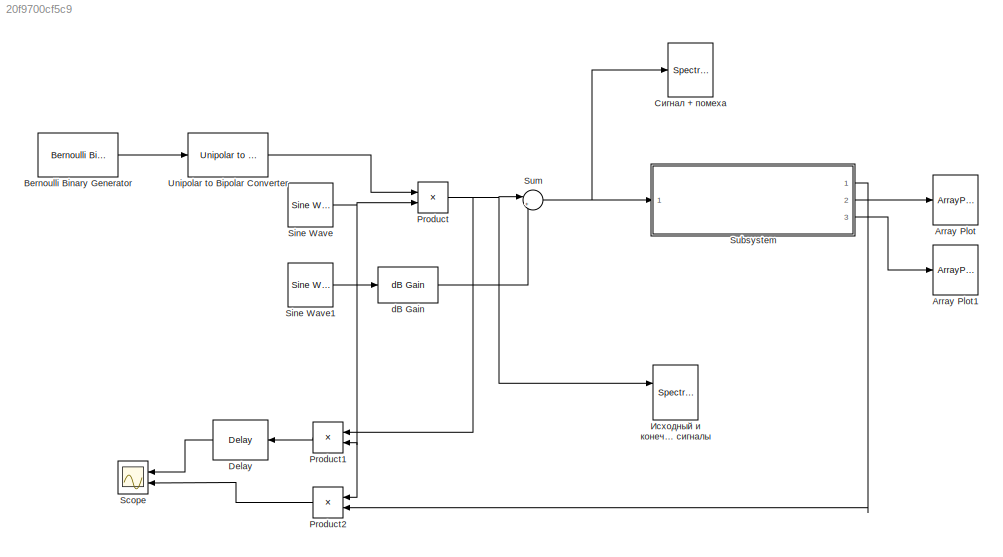
MODEL slx_20f9700cf5c9
KIND model
CONFIG AbsTol = auto
CONFIG EnableMultiTasking = off
CONFIG FixedStep = auto
CONFIG MaxStep = auto
CONFIG MinStep = auto
CONFIG RelTol = 1e-3
CONFIG SampleTimeConstraint = Unconstrained
CONFIG SolverName = VariableStepAuto
CONFIG StartTime = 0.0
CONFIG StopTime = inf
BLOCK [ArrayPlot] Array Plot
  Ports = [1]
  ScopeSpecificationString = dsp.scopes.ArrayPlotBlockSpecification('CurrentConfiguration', extmgr.ConfigurationSet(extmgr.Configuration('Core','General UI',true),extmgr.Configuration('Core','Source UI',true),extmgr.Configuration('Sources','WiredSimulink',true),extmgr.Configuration('Visuals','Array Plot',true,'DisplayPropertyDefaults',struct('MinYLimReal','-26.775','MaxYLimReal','241.774','YLabelReal','Amplitude','MinYLimMag'...<+1396ch>
BLOCK [ArrayPlot] Array Plot1
  Ports = [1]
  ScopeSpecificationString = dsp.scopes.ArrayPlotBlockSpecification('CurrentConfiguration', extmgr.ConfigurationSet(extmgr.Configuration('Core','General UI',true),extmgr.Configuration('Core','Source UI',true),extmgr.Configuration('Sources','WiredSimulink',true),extmgr.Configuration('Visuals','Array Plot',true,'DisplayPropertyDefaults',struct('MinYLimReal','-13.0743','MaxYLimReal','117.668','YLabelReal','Amplitude','MinYLimMag...<+1369ch>
BLOCK [Reference] Bernoulli Binary Generator  REF=commrandsrc3/Bernoulli Binary
Generator
  Ports = [0, 1]
  SourceBlock = commrandsrc3/Bernoulli Binary\nGenerator
  SourceProductBaseCode = CM
  SourceType = Bernoulli Binary Generator
BLOCK [Delay] Delay
  DelayLength = 1024
  InitialCondition = 0
  InputPortMap = u0
  Ports = [1, 1]
BLOCK [Product] Product
  Ports = [2, 1]
BLOCK [Product] Product1
  Ports = [2, 1]
BLOCK [Product] Product2
  Ports = [2, 1]
BLOCK [Scope] Scope
  Floating = off
  NumInputPorts = 2
  Ports = [2]
  ScopeSpecificationString = Simulink.scopes.TimeScopeBlockCfg('CurrentConfiguration', extmgr.ConfigurationSet(extmgr.Configuration('Core','General UI',true),extmgr.Configuration('Core','Source UI',true),extmgr.Configuration('Sources','WiredSimulink',true),extmgr.Configuration('Visuals','Time Domain',true,'SerializedDisplays',{struct('MinYLimReal','-1.25','MaxYLimReal','1.25','YLabelReal','','MinYLimMag','0.00000','MaxYLimMag...<+2050ch>
BLOCK [Reference] Sine Wave  REF=dspsrcs4/Sine Wave
  Ports = [0, 1]
  SourceBlock = dspsrcs4/Sine Wave
  SourceProductBaseCode = DS
  SourceType = Sine Wave
BLOCK [Reference] Sine Wave1  REF=dspsrcs4/Sine Wave
  Ports = [0, 1]
  SourceBlock = dspsrcs4/Sine Wave
  SourceProductBaseCode = DS
  SourceType = Sine Wave
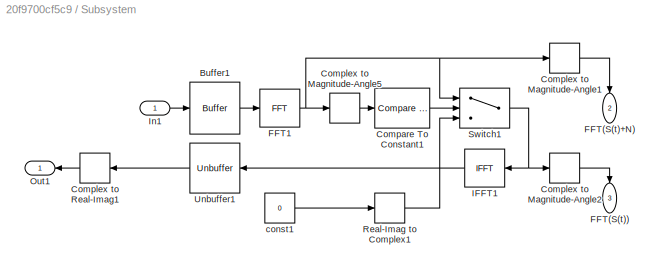
BLOCK [SubSystem] Subsystem
  Ports = [1, 3]
  RequestExecContextInheritance = off
BLOCK [Buffer] Subsystem/Buffer1
  N = FFT_Length
  OutputFrames = off
BLOCK [Reference] Subsystem/Compare To Constant1  REF=simulink/Logic and Bit
Operations/Compare
To Constant
  Ports = [1, 1]
  SourceBlock = simulink/Logic and Bit\nOperations/Compare\nTo Constant
  SourceProductBaseCode = SL
  SourceType = Compare To Constant
BLOCK [ComplexToMagnitudeAngle] Subsystem/Complex to Magnitude-Angle1
  Output = Magnitude
  Ports = [1, 1]
BLOCK [ComplexToMagnitudeAngle] Subsystem/Complex to Magnitude-Angle2
  Output = Magnitude
  Ports = [1, 1]
BLOCK [ComplexToMagnitudeAngle] Subsystem/Complex to Magnitude-Angle5
  Output = Magnitude
  Ports = [1, 1]
BLOCK [ComplexToRealImag] Subsystem/Complex to Real-Imag1
  Output = Real
  Ports = [1, 1]
BLOCK [Outport] Subsystem/FFT(S(t))
  NameLocation = left
  Port = 3
BLOCK [Outport] Subsystem/FFT(S(t)+N)
  NameLocation = left
  Port = 2
BLOCK [Reference] Subsystem/FFT1  REF=dspxfrm3/FFT
  Ports = [1, 1]
  SourceBlock = dspxfrm3/FFT
  SourceProductBaseCode = DS
  SourceType = FFT
BLOCK [Reference] Subsystem/IFFT1  REF=dspxfrm3/IFFT
  Ports = [1, 1]
  SourceBlock = dspxfrm3/IFFT
  SourceProductBaseCode = DS
  SourceType = IFFT
BLOCK [Inport] Subsystem/In1
BLOCK [Outport] Subsystem/Out1
BLOCK [RealImagToComplex] Subsystem/Real-Imag to Complex1
  Input = Real
  NameLocation = top
  Ports = [1, 1]
BLOCK [Switch] Subsystem/Switch1
  Criteria = u2 > Threshold
  InputSameDT = off
  SaturateOnIntegerOverflow = off
BLOCK [Unbuffer] Subsystem/Unbuffer1
  Ports = [1, 1]
BLOCK [Constant] Subsystem/const1
  OutDataTypeStr = Inherit: Inherit via back propagation
  Value = 0
BLOCK [Sum] Sum
  Inputs = |++
  Ports = [2, 1]
BLOCK [Reference] Unipolar to Bipolar Converter  REF=commutil2/Unipolar to
Bipolar
Converter
  Ports = [1, 1]
  SourceBlock = commutil2/Unipolar to\nBipolar\nConverter
  SourceProductBaseCode = CM
  SourceType = Unipolar to Bipolar Converter
BLOCK [Reference] dB Gain  REF=dspmathops/dB Gain
  Ports = [1, 1]
  SourceBlock = dspmathops/dB Gain
  SourceProductBaseCode = DS
  SourceType = dB Gain
BLOCK [SpectrumAnalyzer] Исходный и конечный сигналы
  NumInputPorts = 2
  Ports = [2]
  ScopeSpecificationString = spbscopes.SpectrumAnalyzerBlockCfg('CurrentConfiguration', extmgr.ConfigurationSet(extmgr.Configuration('Core','General UI',true),extmgr.Configuration('Core','Source UI',true),extmgr.Configuration('Sources','WiredSimulink',true),extmgr.Configuration('Visuals','Spectrum',true,'AxesProperties',struct('Color',{[0 0 0],[0 0 0]},'XColor',{[0.686274509803922 0.686274509803922 0.686274509803922],[0.68627...<+2423ch>
BLOCK [SpectrumAnalyzer] Сигнал + помеха
  Ports = [1]
  ScopeSpecificationString = spbscopes.SpectrumAnalyzerBlockCfg('CurrentConfiguration', extmgr.ConfigurationSet(extmgr.Configuration('Core','General UI',true),extmgr.Configuration('Core','Source UI',true),extmgr.Configuration('Sources','WiredSimulink',true),extmgr.Configuration('Visuals','Spectrum',true,'AxesProperties',struct('Color',{[0 0 0],[0 0 0]},'XColor',{[0.686274509803922 0.686274509803922 0.686274509803922],[0.68627...<+2191ch>
LINE Bernoulli Binary Generator:1 -> Unipolar to Bipolar Converter:1
LINE Delay:1 -> Scope:1
LINE Product1:1 -> Delay:1
LINE Product2:1 -> Scope:2
NET Product:1 -> Product1:1, Sum:1, Исходный и конечный сигналы:1
LINE Sine Wave1:1 -> dB Gain:1
NET Sine Wave:1 -> Product1:2, Product2:1, Product:2
LINE Subsystem/Buffer1:1 -> Subsystem/FFT1:1
LINE Subsystem/Compare To Constant1:1 -> Subsystem/Switch1:2
LINE Subsystem/Complex to Magnitude-Angle1:1 -> Subsystem/FFT(S(t)+N):1
LINE Subsystem/Complex to Magnitude-Angle2:1 -> Subsystem/FFT(S(t)):1
LINE Subsystem/Complex to Magnitude-Angle5:1 -> Subsystem/Compare To Constant1:1
LINE Subsystem/Complex to Real-Imag1:1 -> Subsystem/Out1:1
NET Subsystem/FFT1:1 -> Subsystem/Complex to Magnitude-Angle1:1, Subsystem/Complex to Magnitude-Angle5:1, Subsystem/Switch1:1
LINE Subsystem/IFFT1:1 -> Subsystem/Unbuffer1:1
LINE Subsystem/In1:1 -> Subsystem/Buffer1:1
LINE Subsystem/Real-Imag to Complex1:1 -> Subsystem/Switch1:3
NET Subsystem/Switch1:1 -> Subsystem/Complex to Magnitude-Angle2:1, Subsystem/IFFT1:1
LINE Subsystem/Unbuffer1:1 -> Subsystem/Complex to Real-Imag1:1
LINE Subsystem/const1:1 -> Subsystem/Real-Imag to Complex1:1
LINE Subsystem:1 -> Product2:2
LINE Subsystem:2 -> Array Plot:1
LINE Subsystem:3 -> Array Plot1:1
NET Sum:1 -> Subsystem:1, Сигнал + помеха:1
LINE Unipolar to Bipolar Converter:1 -> Product:1
LINE dB Gain:1 -> Sum:2
note: NET lines group one-source signal fan-out (src -> all destinations, sorted); 1:1 wires keep LINE
